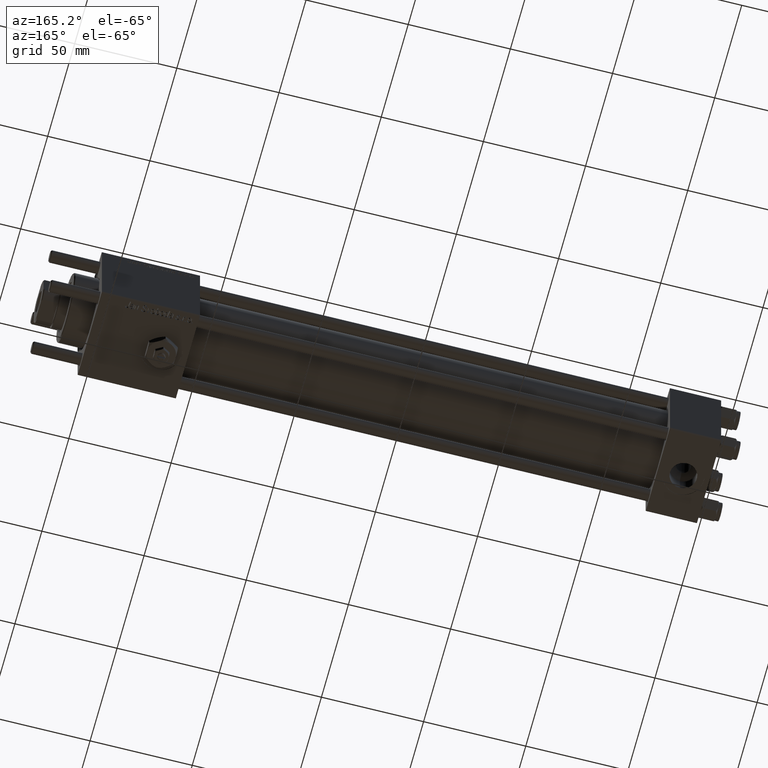
[diagram: clean part render]
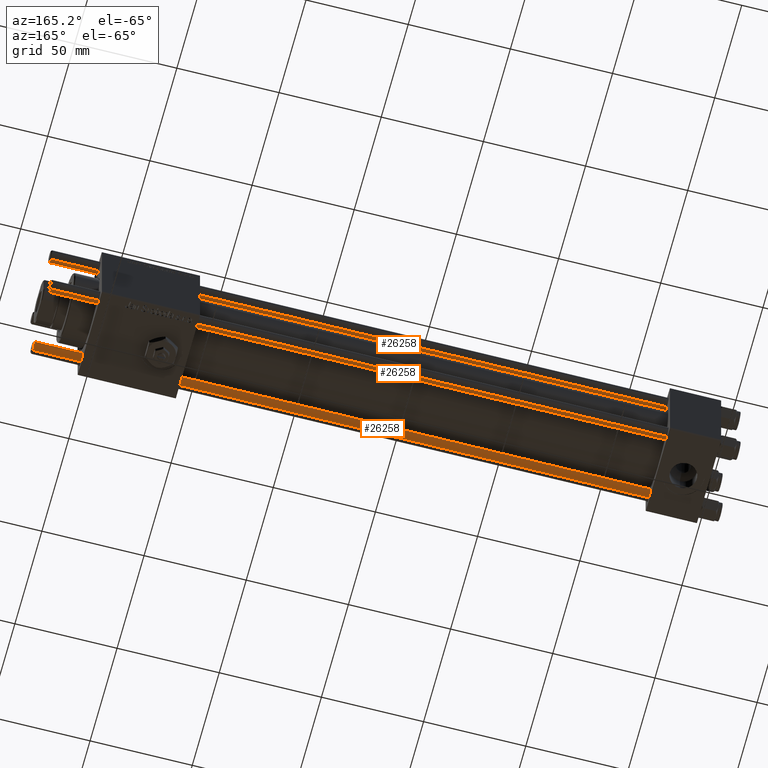
[diagram: same view with one multi-face feature highlighted, each face labeled with its STEP entity id]
A machine part, auxiliary view. The highlighted faces form ONE feature: a constant-radius fillet chain: 3 tangent blend faces with common blend radius 3 mm. The faces share edges in the B-rep.
Their STEP definitions:
[1] entity #26258 (Cylinder):
#331 = ORIENTED_EDGE ( 'NONE', *, *, #59456, .T. ) ;
#2450 = CARTESIAN_POINT ( 'NONE',  ( 3.000000000000000444, 3.673940397442060361E-16, 0.5000000000000004441 ) ) ;
#2506 = DIRECTION ( 'NONE',  ( -0.000000000000000000, -0.000000000000000000, -1.000000000000000000 ) ) ;
#3656 = CARTESIAN_POINT ( 'NONE',  ( 3.000000000000000444, 3.673940397442060361E-16, 336.5000000000000568 ) ) ;
#7348 = DIRECTION ( 'NONE',  ( -1.000000000000000000, 0.000000000000000000, 0.000000000000000000 ) ) ;
#7523 = DIRECTION ( 'NONE',  ( -0.000000000000000000, -0.000000000000000000, 1.000000000000000000 ) ) ;
#8551 = FACE_OUTER_BOUND ( 'NONE', #45094, .T. ) ;
#9246 = DIRECTION ( 'NONE',  ( 1.000000000000000000, 0.000000000000000000, 0.000000000000000000 ) ) ;
#9568 = DIRECTION ( 'NONE',  ( -0.000000000000000000, -0.000000000000000000, -1.000000000000000000 ) ) ;
#10573 = VECTOR ( 'NONE', #9568, 1000.000000000000000 ) ;
#10889 = CIRCLE ( 'NONE', #26404, 3.000000000000000444 ) ;
#12803 = LINE ( 'NONE', #44069, #31661 ) ;
#13324 = VERTEX_POINT ( 'NONE', #44807 ) ;
#13527 = AXIS2_PLACEMENT_3D ( 'NONE', #58627, #58027, #7348 ) ;
#18682 = AXIS2_PLACEMENT_3D ( 'NONE', #35723, #7523, #21171 ) ;
#21171 = DIRECTION ( 'NONE',  ( 1.000000000000000000, 0.000000000000000000, 0.000000000000000000 ) ) ;
#24939 = EDGE_CURVE ( 'NONE', #42603, #27557, #51132, .T. ) ;
#26258 = ADVANCED_FACE ( 'NONE', ( #8551 ), #40109, .T. ) ;
#26404 = AXIS2_PLACEMENT_3D ( 'NONE', #59637, #27741, #9246 ) ;
#27557 = VERTEX_POINT ( 'NONE', #2450 ) ;
#27741 = DIRECTION ( 'NONE',  ( 0.000000000000000000, 0.000000000000000000, -1.000000000000000000 ) ) ;
#28629 = ORIENTED_EDGE ( 'NONE', *, *, #24939, .F. ) ;
#31661 = VECTOR ( 'NONE', #2506, 1000.000000000000000 ) ;
#34844 = EDGE_CURVE ( 'NONE', #13324, #27557, #59408, .T. ) ;
#35723 = CARTESIAN_POINT ( 'NONE',  ( 0.000000000000000000, 0.000000000000000000, 0.5000000000000004441 ) ) ;
#37457 = CARTESIAN_POINT ( 'NONE',  ( 3.000000000000000444, 3.673940397442060361E-16, 337.0000000000000000 ) ) ;
#40109 = CYLINDRICAL_SURFACE ( 'NONE', #13527, 3.000000000000000444 ) ;
#42603 = VERTEX_POINT ( 'NONE', #3656 ) ;
#43039 = EDGE_CURVE ( 'NONE', #42603, #59349, #10889, .T. ) ;
#43466 = CARTESIAN_POINT ( 'NONE',  ( -3.000000000000000444, 0.000000000000000000, 336.5000000000000568 ) ) ;
#44069 = CARTESIAN_POINT ( 'NONE',  ( -3.000000000000000444, 0.000000000000000000, 337.0000000000000000 ) ) ;
#44497 = ORIENTED_EDGE ( 'NONE', *, *, #43039, .T. ) ;
#44807 = CARTESIAN_POINT ( 'NONE',  ( -3.000000000000000444, 0.000000000000000000, 0.5000000000000004441 ) ) ;
#45094 = EDGE_LOOP ( 'NONE', ( #28629, #44497, #331, #53190 ) ) ;
#51132 = LINE ( 'NONE', #37457, #10573 ) ;
#53190 = ORIENTED_EDGE ( 'NONE', *, *, #34844, .T. ) ;
#58027 = DIRECTION ( 'NONE',  ( -0.000000000000000000, -0.000000000000000000, -1.000000000000000000 ) ) ;
#58627 = CARTESIAN_POINT ( 'NONE',  ( 0.000000000000000000, 0.000000000000000000, 337.0000000000000000 ) ) ;
#59349 = VERTEX_POINT ( 'NONE', #43466 ) ;
#59408 = CIRCLE ( 'NONE', #18682, 3.000000000000000444 ) ;
#59456 = EDGE_CURVE ( 'NONE', #59349, #13324, #12803, .T. ) ;
#59637 = CARTESIAN_POINT ( 'NONE',  ( 0.000000000000000000, 0.000000000000000000, 336.5000000000000568 ) ) ;
[2] entity #26258 (Cylinder):
#331 = ORIENTED_EDGE ( 'NONE', *, *, #59456, .T. ) ;
#2450 = CARTESIAN_POINT ( 'NONE',  ( 3.000000000000000444, 3.673940397442060361E-16, 0.5000000000000004441 ) ) ;
#2506 = DIRECTION ( 'NONE',  ( -0.000000000000000000, -0.000000000000000000, -1.000000000000000000 ) ) ;
#3656 = CARTESIAN_POINT ( 'NONE',  ( 3.000000000000000444, 3.673940397442060361E-16, 336.5000000000000568 ) ) ;
#7348 = DIRECTION ( 'NONE',  ( -1.000000000000000000, 0.000000000000000000, 0.000000000000000000 ) ) ;
#7523 = DIRECTION ( 'NONE',  ( -0.000000000000000000, -0.000000000000000000, 1.000000000000000000 ) ) ;
#8551 = FACE_OUTER_BOUND ( 'NONE', #45094, .T. ) ;
#9246 = DIRECTION ( 'NONE',  ( 1.000000000000000000, 0.000000000000000000, 0.000000000000000000 ) ) ;
#9568 = DIRECTION ( 'NONE',  ( -0.000000000000000000, -0.000000000000000000, -1.000000000000000000 ) ) ;
#10573 = VECTOR ( 'NONE', #9568, 1000.000000000000000 ) ;
#10889 = CIRCLE ( 'NONE', #26404, 3.000000000000000444 ) ;
#12803 = LINE ( 'NONE', #44069, #31661 ) ;
#13324 = VERTEX_POINT ( 'NONE', #44807 ) ;
#13527 = AXIS2_PLACEMENT_3D ( 'NONE', #58627, #58027, #7348 ) ;
#18682 = AXIS2_PLACEMENT_3D ( 'NONE', #35723, #7523, #21171 ) ;
#21171 = DIRECTION ( 'NONE',  ( 1.000000000000000000, 0.000000000000000000, 0.000000000000000000 ) ) ;
#24939 = EDGE_CURVE ( 'NONE', #42603, #27557, #51132, .T. ) ;
#26258 = ADVANCED_FACE ( 'NONE', ( #8551 ), #40109, .T. ) ;
#26404 = AXIS2_PLACEMENT_3D ( 'NONE', #59637, #27741, #9246 ) ;
#27557 = VERTEX_POINT ( 'NONE', #2450 ) ;
#27741 = DIRECTION ( 'NONE',  ( 0.000000000000000000, 0.000000000000000000, -1.000000000000000000 ) ) ;
#28629 = ORIENTED_EDGE ( 'NONE', *, *, #24939, .F. ) ;
#31661 = VECTOR ( 'NONE', #2506, 1000.000000000000000 ) ;
#34844 = EDGE_CURVE ( 'NONE', #13324, #27557, #59408, .T. ) ;
#35723 = CARTESIAN_POINT ( 'NONE',  ( 0.000000000000000000, 0.000000000000000000, 0.5000000000000004441 ) ) ;
#37457 = CARTESIAN_POINT ( 'NONE',  ( 3.000000000000000444, 3.673940397442060361E-16, 337.0000000000000000 ) ) ;
#40109 = CYLINDRICAL_SURFACE ( 'NONE', #13527, 3.000000000000000444 ) ;
#42603 = VERTEX_POINT ( 'NONE', #3656 ) ;
#43039 = EDGE_CURVE ( 'NONE', #42603, #59349, #10889, .T. ) ;
#43466 = CARTESIAN_POINT ( 'NONE',  ( -3.000000000000000444, 0.000000000000000000, 336.5000000000000568 ) ) ;
#44069 = CARTESIAN_POINT ( 'NONE',  ( -3.000000000000000444, 0.000000000000000000, 337.0000000000000000 ) ) ;
#44497 = ORIENTED_EDGE ( 'NONE', *, *, #43039, .T. ) ;
#44807 = CARTESIAN_POINT ( 'NONE',  ( -3.000000000000000444, 0.000000000000000000, 0.5000000000000004441 ) ) ;
#45094 = EDGE_LOOP ( 'NONE', ( #28629, #44497, #331, #53190 ) ) ;
#51132 = LINE ( 'NONE', #37457, #10573 ) ;
#53190 = ORIENTED_EDGE ( 'NONE', *, *, #34844, .T. ) ;
#58027 = DIRECTION ( 'NONE',  ( -0.000000000000000000, -0.000000000000000000, -1.000000000000000000 ) ) ;
#58627 = CARTESIAN_POINT ( 'NONE',  ( 0.000000000000000000, 0.000000000000000000, 337.0000000000000000 ) ) ;
#59349 = VERTEX_POINT ( 'NONE', #43466 ) ;
#59408 = CIRCLE ( 'NONE', #18682, 3.000000000000000444 ) ;
#59456 = EDGE_CURVE ( 'NONE', #59349, #13324, #12803, .T. ) ;
#59637 = CARTESIAN_POINT ( 'NONE',  ( 0.000000000000000000, 0.000000000000000000, 336.5000000000000568 ) ) ;
[3] entity #26258 (Cylinder):
#331 = ORIENTED_EDGE ( 'NONE', *, *, #59456, .T. ) ;
#2450 = CARTESIAN_POINT ( 'NONE',  ( 3.000000000000000444, 3.673940397442060361E-16, 0.5000000000000004441 ) ) ;
#2506 = DIRECTION ( 'NONE',  ( -0.000000000000000000, -0.000000000000000000, -1.000000000000000000 ) ) ;
#3656 = CARTESIAN_POINT ( 'NONE',  ( 3.000000000000000444, 3.673940397442060361E-16, 336.5000000000000568 ) ) ;
#7348 = DIRECTION ( 'NONE',  ( -1.000000000000000000, 0.000000000000000000, 0.000000000000000000 ) ) ;
#7523 = DIRECTION ( 'NONE',  ( -0.000000000000000000, -0.000000000000000000, 1.000000000000000000 ) ) ;
#8551 = FACE_OUTER_BOUND ( 'NONE', #45094, .T. ) ;
#9246 = DIRECTION ( 'NONE',  ( 1.000000000000000000, 0.000000000000000000, 0.000000000000000000 ) ) ;
#9568 = DIRECTION ( 'NONE',  ( -0.000000000000000000, -0.000000000000000000, -1.000000000000000000 ) ) ;
#10573 = VECTOR ( 'NONE', #9568, 1000.000000000000000 ) ;
#10889 = CIRCLE ( 'NONE', #26404, 3.000000000000000444 ) ;
#12803 = LINE ( 'NONE', #44069, #31661 ) ;
#13324 = VERTEX_POINT ( 'NONE', #44807 ) ;
#13527 = AXIS2_PLACEMENT_3D ( 'NONE', #58627, #58027, #7348 ) ;
#18682 = AXIS2_PLACEMENT_3D ( 'NONE', #35723, #7523, #21171 ) ;
#21171 = DIRECTION ( 'NONE',  ( 1.000000000000000000, 0.000000000000000000, 0.000000000000000000 ) ) ;
#24939 = EDGE_CURVE ( 'NONE', #42603, #27557, #51132, .T. ) ;
#26258 = ADVANCED_FACE ( 'NONE', ( #8551 ), #40109, .T. ) ;
#26404 = AXIS2_PLACEMENT_3D ( 'NONE', #59637, #27741, #9246 ) ;
#27557 = VERTEX_POINT ( 'NONE', #2450 ) ;
#27741 = DIRECTION ( 'NONE',  ( 0.000000000000000000, 0.000000000000000000, -1.000000000000000000 ) ) ;
#28629 = ORIENTED_EDGE ( 'NONE', *, *, #24939, .F. ) ;
#31661 = VECTOR ( 'NONE', #2506, 1000.000000000000000 ) ;
#34844 = EDGE_CURVE ( 'NONE', #13324, #27557, #59408, .T. ) ;
#35723 = CARTESIAN_POINT ( 'NONE',  ( 0.000000000000000000, 0.000000000000000000, 0.5000000000000004441 ) ) ;
#37457 = CARTESIAN_POINT ( 'NONE',  ( 3.000000000000000444, 3.673940397442060361E-16, 337.0000000000000000 ) ) ;
#40109 = CYLINDRICAL_SURFACE ( 'NONE', #13527, 3.000000000000000444 ) ;
#42603 = VERTEX_POINT ( 'NONE', #3656 ) ;
#43039 = EDGE_CURVE ( 'NONE', #42603, #59349, #10889, .T. ) ;
#43466 = CARTESIAN_POINT ( 'NONE',  ( -3.000000000000000444, 0.000000000000000000, 336.5000000000000568 ) ) ;
#44069 = CARTESIAN_POINT ( 'NONE',  ( -3.000000000000000444, 0.000000000000000000, 337.0000000000000000 ) ) ;
#44497 = ORIENTED_EDGE ( 'NONE', *, *, #43039, .T. ) ;
#44807 = CARTESIAN_POINT ( 'NONE',  ( -3.000000000000000444, 0.000000000000000000, 0.5000000000000004441 ) ) ;
#45094 = EDGE_LOOP ( 'NONE', ( #28629, #44497, #331, #53190 ) ) ;
#51132 = LINE ( 'NONE', #37457, #10573 ) ;
#53190 = ORIENTED_EDGE ( 'NONE', *, *, #34844, .T. ) ;
#58027 = DIRECTION ( 'NONE',  ( -0.000000000000000000, -0.000000000000000000, -1.000000000000000000 ) ) ;
#58627 = CARTESIAN_POINT ( 'NONE',  ( 0.000000000000000000, 0.000000000000000000, 337.0000000000000000 ) ) ;
#59349 = VERTEX_POINT ( 'NONE', #43466 ) ;
#59408 = CIRCLE ( 'NONE', #18682, 3.000000000000000444 ) ;
#59456 = EDGE_CURVE ( 'NONE', #59349, #13324, #12803, .T. ) ;
#59637 = CARTESIAN_POINT ( 'NONE',  ( 0.000000000000000000, 0.000000000000000000, 336.5000000000000568 ) ) ;